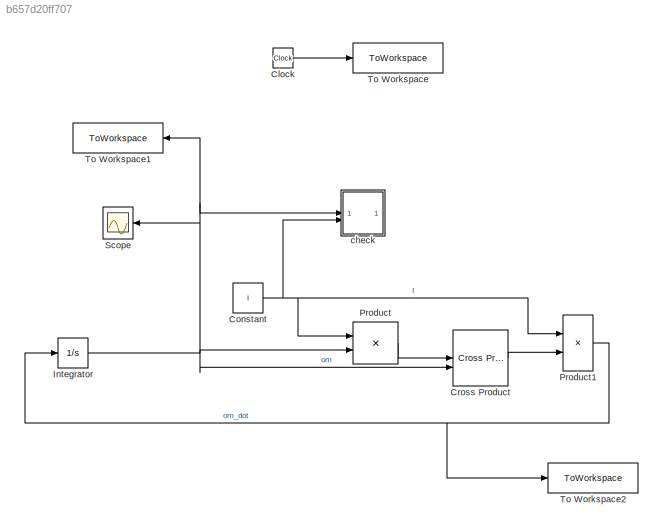
MODEL slx_b657d20ff707
KIND model
CONFIG AbsTol = auto
CONFIG EnableMultiTasking = off
CONFIG FixedStep = 0.1
CONFIG MaxStep = auto
CONFIG MinStep = auto
CONFIG RelTol = 1e-3
CONFIG SampleTimeConstraint = Unconstrained
CONFIG SolverName = ode4
CONFIG StartTime = 0.0
CONFIG StopTime = 100
BLOCK [Clock] Clock
BLOCK [Constant] Constant
  Value = I
BLOCK [Reference] Cross Product  REF=matrix_library/Cross Product
  LibrarySourceBlock = simulink/Matrix\nOperations/Cross Product
  SourceBlock = matrix_library/Cross Product
  SourceType = CrossProduct
BLOCK [Integrator] Integrator
  InitialCondition = om_0
BLOCK [Product] Product
  Multiplication = Matrix(*)
BLOCK [Product] Product1
  Inputs = /*
  Multiplication = Matrix(*)
BLOCK [Scope] Scope
  Floating = off
  NameLocation = top
  NumInputPorts = 1
  ScopeSpecificationString = Simulink.scopes.TimeScopeBlockCfg('CurrentConfiguration', extmgr.ConfigurationSet(extmgr.Configuration('Core','General UI',true),extmgr.Configuration('Core','Source UI',true),extmgr.Configuration('Sources','WiredSimulink',true),extmgr.Configuration('Visuals','Time Domain',true,'SerializedDisplays',{struct('MinYLimReal','-1.01319','MaxYLimReal','1.01319','YLabelReal','','MinYLimMag','0.00000','MaxY...<+1338ch>
BLOCK [ToWorkspace] To Workspace
  FixptAsFi = on
  MaxDataPoints = inf
  SampleTime = -1
  SaveFormat = Timeseries
  VariableName = time
BLOCK [ToWorkspace] To Workspace1
  FixptAsFi = on
  MaxDataPoints = inf
  NameLocation = top
  SampleTime = -1
  VariableName = omega
BLOCK [ToWorkspace] To Workspace2
  FixptAsFi = on
  MaxDataPoints = inf
  SampleTime = -1
  VariableName = omega_dot
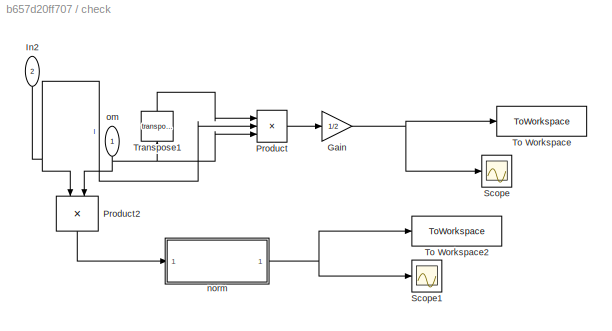
BLOCK [SubSystem] check
BLOCK [Gain] check/Gain
  Gain = 1/2
BLOCK [Inport] check/In2
  NameLocation = left
  Port = 2
BLOCK [Product] check/Product
  Inputs = 3
  Multiplication = Matrix(*)
BLOCK [Product] check/Product2
  Multiplication = Matrix(*)
  NameLocation = left
BLOCK [Scope] check/Scope
  Floating = off
  NumInputPorts = 1
  ScopeSpecificationString = Simulink.scopes.TimeScopeBlockCfg('CurrentConfiguration', extmgr.ConfigurationSet(extmgr.Configuration('Core','General UI',true),extmgr.Configuration('Core','Source UI',true),extmgr.Configuration('Sources','WiredSimulink',true,'DataLoggingVariableName','ScopeData2'),extmgr.Configuration('Visuals','Time Domain',true,'SerializedDisplays',{struct('MinYLimReal','0.01830474937','MaxYLimReal','0.0183047...<+1409ch>
BLOCK [Scope] check/Scope1
  Floating = off
  NumInputPorts = 1
  ScopeSpecificationString = Simulink.scopes.TimeScopeBlockCfg('CurrentConfiguration', extmgr.ConfigurationSet(extmgr.Configuration('Core','General UI',true),extmgr.Configuration('Core','Source UI',true),extmgr.Configuration('Sources','WiredSimulink',true,'DataLoggingVariableName','ScopeData1'),extmgr.Configuration('Visuals','Time Domain',true,'SerializedDisplays',{struct('MinYLimReal','0.0447132243','MaxYLimReal','0.04471322...<+1406ch>
BLOCK [ToWorkspace] check/To Workspace
  FixptAsFi = on
  MaxDataPoints = inf
  SampleTime = -1
  VariableName = E
BLOCK [ToWorkspace] check/To Workspace2
  FixptAsFi = on
  MaxDataPoints = inf
  SampleTime = -1
  VariableName = hnorm
BLOCK [Math] check/Transpose1
  NameLocation = right
  Operator = transpose
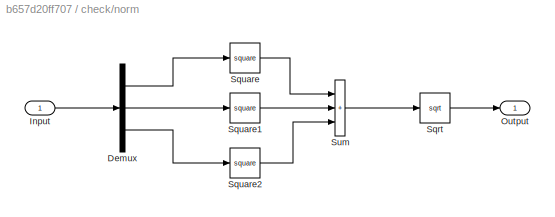
BLOCK [SubSystem] check/norm
BLOCK [Demux] check/norm/Demux
  Outputs = 3
BLOCK [Inport] check/norm/Input
BLOCK [Outport] check/norm/Output
BLOCK [Sqrt] check/norm/Sqrt
BLOCK [Math] check/norm/Square
  Operator = square
BLOCK [Math] check/norm/Square1
  Operator = square
BLOCK [Math] check/norm/Square2
  Operator = square
BLOCK [Sum] check/norm/Sum
  IconShape = rectangular
  Inputs = +++
BLOCK [Inport] check/om
  NameLocation = left
LINE Clock:1 -> To Workspace:1
NET Constant:1 -> Product1:1, Product:1, check:2
LINE Cross Product:1 -> Product1:2
NET Integrator:1 -> Cross Product:2, Product:2, Scope:1, To Workspace1:1, check:1
NET Product1:1 -> Integrator:1, To Workspace2:1
LINE Product:1 -> Cross Product:1
NET check/Gain:1 -> check/Scope:1, check/To Workspace:1
NET check/In2:1 -> check/Product2:1, check/Product:2
LINE check/Product2:1 -> check/norm:1
LINE check/Product:1 -> check/Gain:1
LINE check/Transpose1:1 -> check/Product:1
LINE check/norm/Demux:1 -> check/norm/Square:1
LINE check/norm/Demux:2 -> check/norm/Square1:1
LINE check/norm/Demux:3 -> check/norm/Square2:1
LINE check/norm/Input:1 -> check/norm/Demux:1
LINE check/norm/Sqrt:1 -> check/norm/Output:1
LINE check/norm/Square1:1 -> check/norm/Sum:2
LINE check/norm/Square2:1 -> check/norm/Sum:3
LINE check/norm/Square:1 -> check/norm/Sum:1
LINE check/norm/Sum:1 -> check/norm/Sqrt:1
NET check/norm:1 -> check/Scope1:1, check/To Workspace2:1
NET check/om:1 -> check/Product2:2, check/Product:3, check/Transpose1:1
note: NET lines group one-source signal fan-out (src -> all destinations, sorted); 1:1 wires keep LINE
